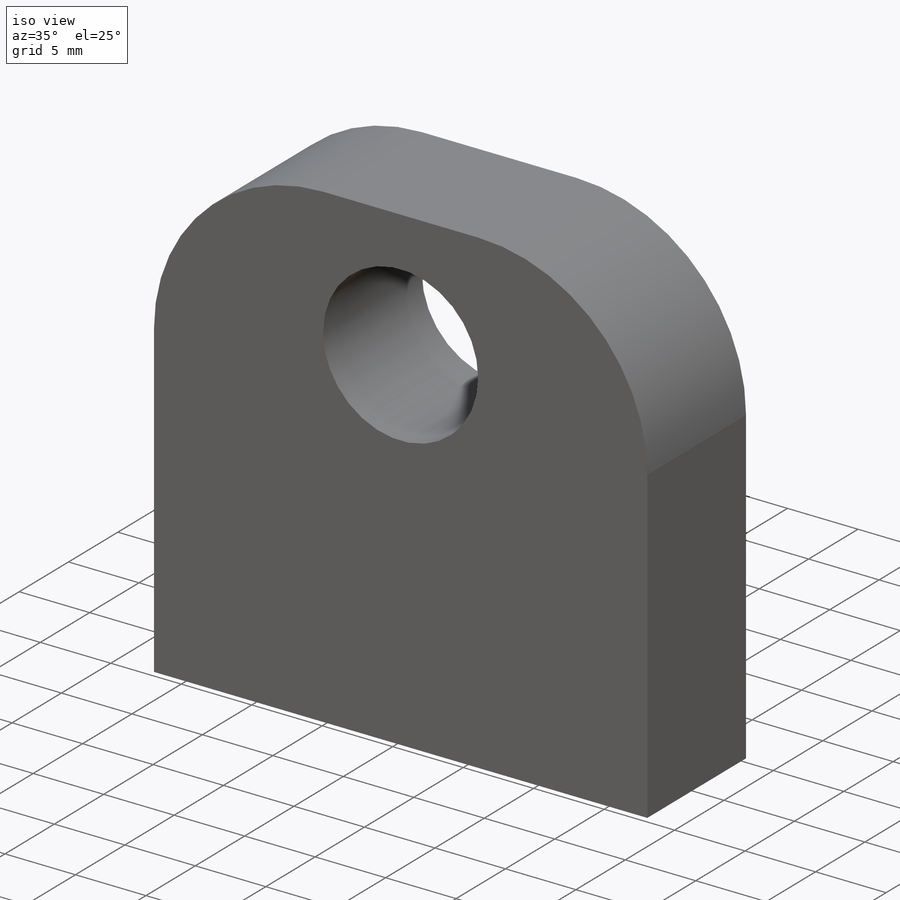
[diagram: iso view]
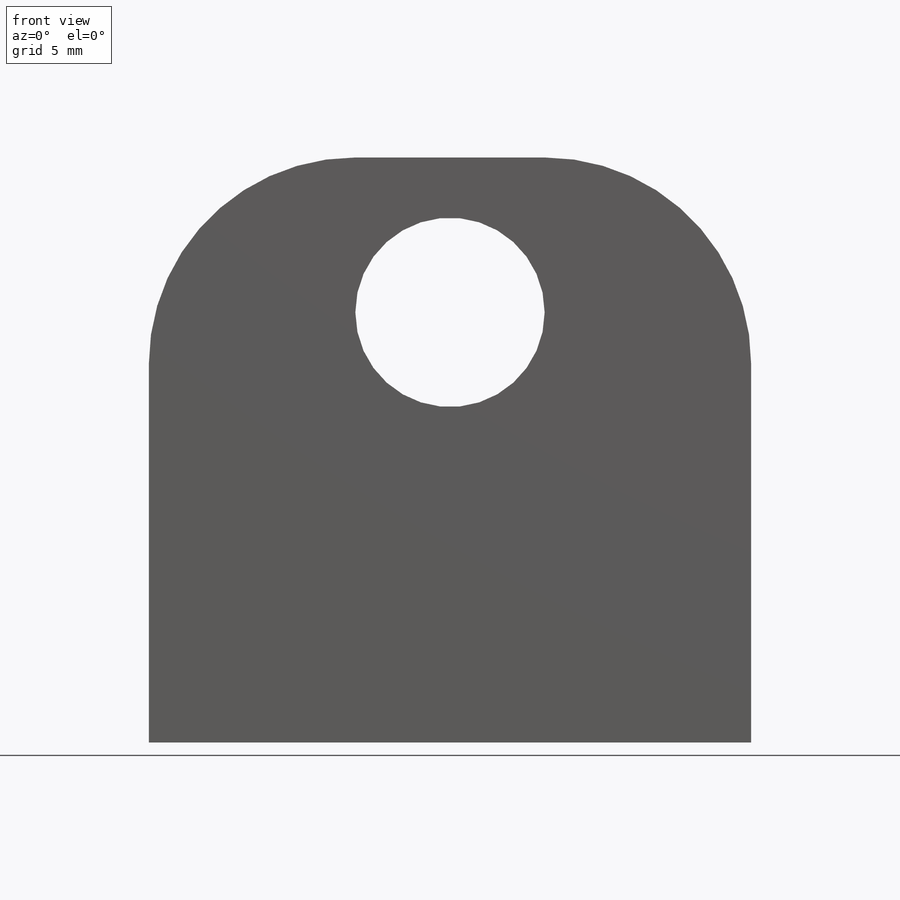
[diagram: front view]
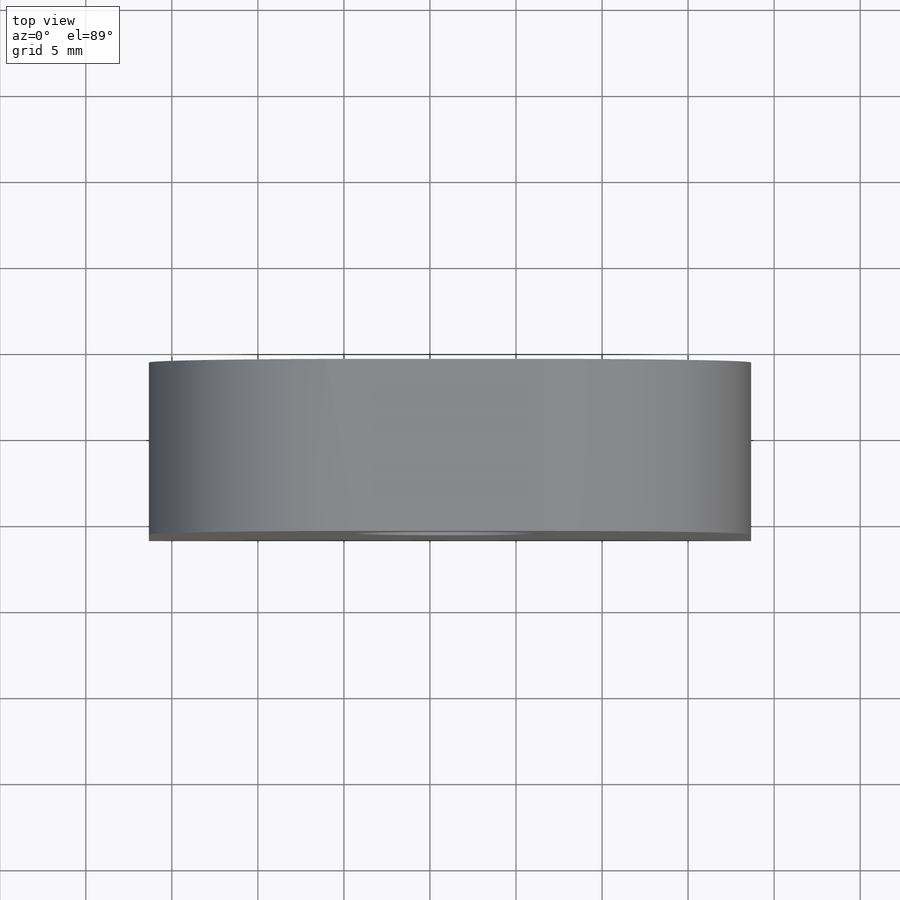
[diagram: top view]
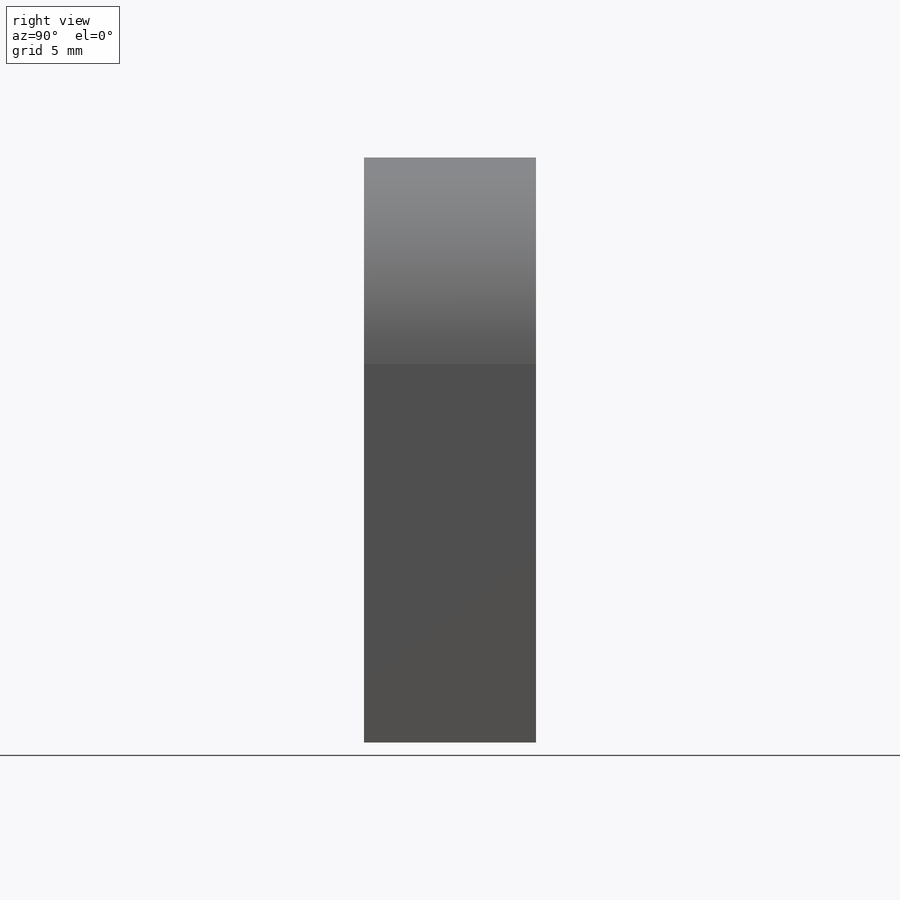
[diagram: right view]
SOLIDWORKS PART (.sldprt)
format: sldprt  version: not decoded by parser v0  size: 266,240 bytes
history: native  units: mm
features: sketch x3, cut_extrude x2, material x1, extrude x1, fillet x1 (+13 scaffold rows collapsed)
feature tree (21):
  scaffold x13  (default folders/planes/origin — collapsed)
  material  "Material <not specified>"
  sketch  "Sketch1"  dims[D1=35.0mm D2=10.0mm]
  extrude  "Boss-Extrude1"  Depth=34mm
  sketch  "Sketch2"  dims[c1.D1=~10.133301mm c1.D3=7.875mm c2.D1=17.5mm c2.D2=12.0mm c2.D3=35.0mm c3.D2=9.0mm]
  cut_extrude  "Cut-Extrude1"  [1 undecoded]
  sketch  "Sketch3"  dims[c1.D1=~1.488771mm c1.D3=~1.721038mm c2.D1=5.0mm c2.D2=8.0mm c2.D3=5.0mm c2.D4=8.0mm]
  cut_extrude  "Cut-Extrude2"  Depth=10mm
  fillet  "Fillet1"  Radius=12mm
decode coverage: 6 of 7 modeling features carry decoded parameters
note: ~ marks probable driven/reference dimensions
note: 1 parameter value undecoded
note: suppression state not decoded; provenance and decode notes live in map.json
